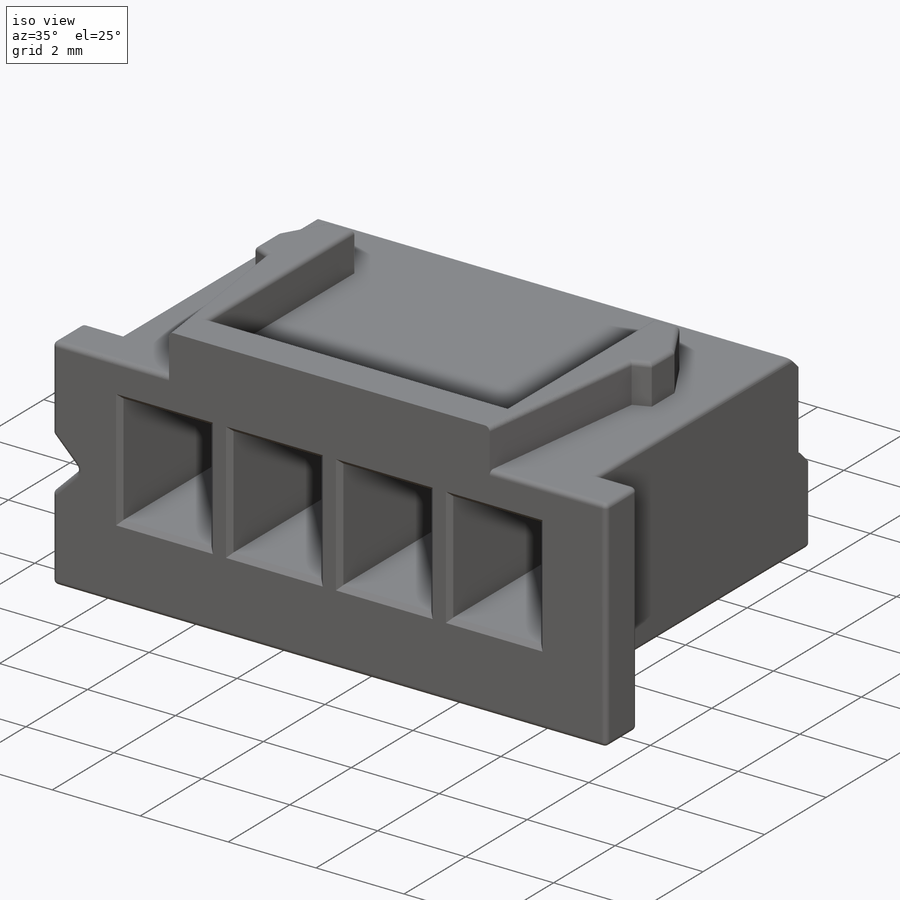
[diagram: iso view]
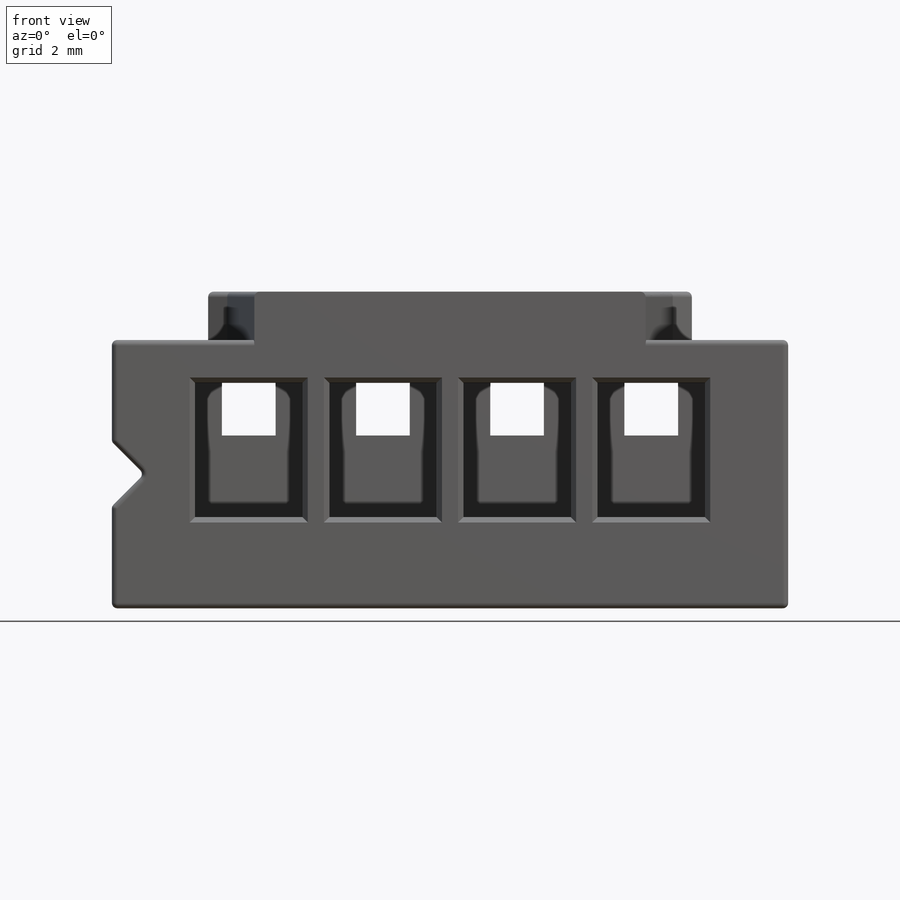
[diagram: front view]
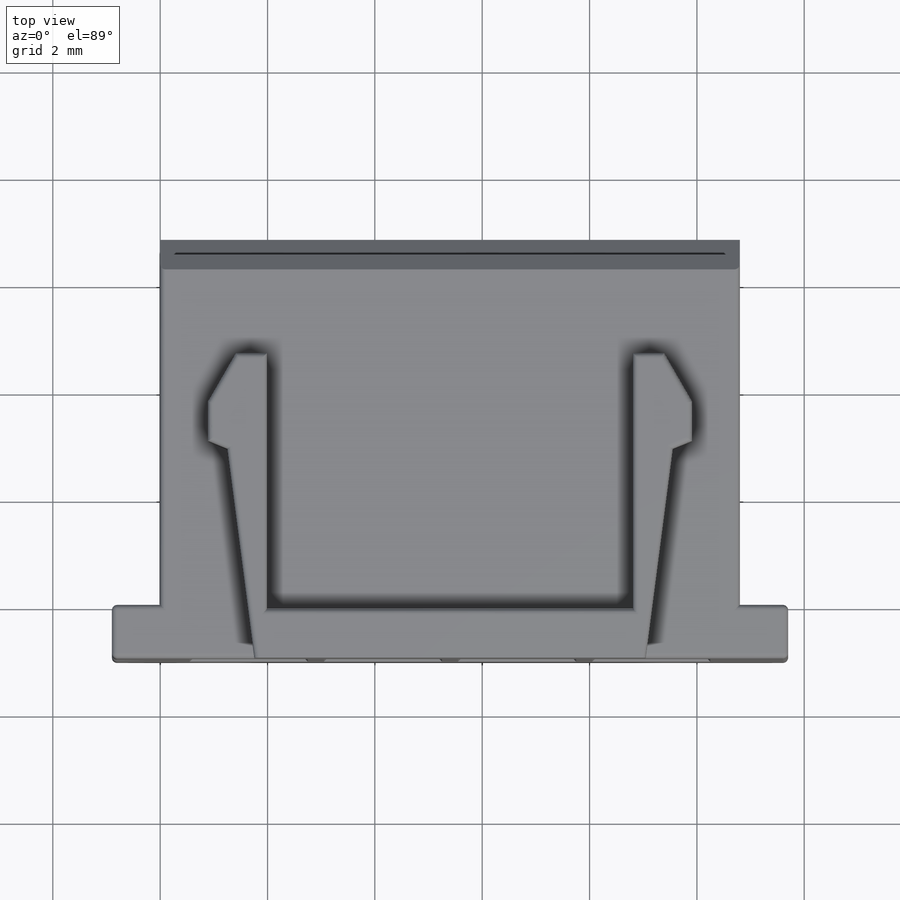
[diagram: top view]
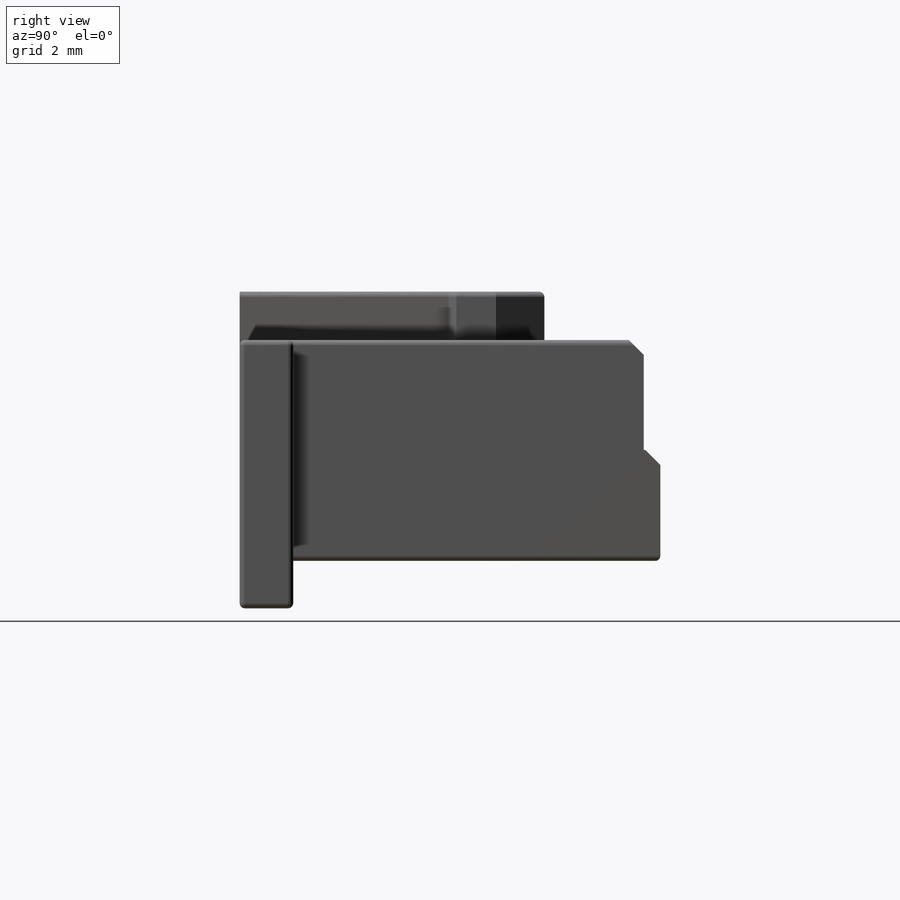
[diagram: right view]
SOLIDWORKS PART (.sldprt)
format: sldprt  version: not decoded by parser v0  size: 498,176 bytes
history: native  units: mm
features: sketch x6, extrude x3, cut_extrude x3, material x1, fillet x1, chamfer x1 (+12 scaffold rows collapsed)
feature tree (27):
  scaffold x12  (default folders/planes/origin — collapsed)
  material  "Material <not specified>"
  sketch  "Sketch2"
  extrude  "Boss-Extrude1"  Depth=10.8mm
  sketch  "Sketch3"  dims[c1.D1=12.3mm c1.D2=6.3mm c1.D3=6.3mm c2.D1=4.9mm c2.D4=5.0mm c2.D5=0.6mm c2.D6=0.6mm c2.D7=0.6mm c2.D8=0.6mm c2.D9=0.6mm c3.D1=0.31mm]
  extrude  "Boss-Extrude2"  Depth=1mm
  sketch  "Sketch4"
  extrude  "Boss-Extrude3"  Depth=0.9mm
  sketch  "Sketch5"  dims[D1=2.0mm D2=2.5mm D3=1.55mm D4=0.8mm D6=2.5mm D5=4.0]
  cut_extrude  "Cut-Extrude1"  Depth=5.2mm
  sketch  "Sketch6"  dims[c1.D1=0.8mm c1.D2=0.8mm c1.D3=1.2mm c1.D4=~0.533841mm c1.D5=~0.133841mm c2.D4=1.2mm c2.D3=0.2mm c3.D4=1.25mm c3.D5=1.2mm c3.D7=1.3mm c3.D6=4.0]
  cut_extrude  "Cut-Extrude2"  Depth=3.75mm
  sketch  "Sketch7"  dims[c1.D1=1.0mm c1.D2=1.0mm c1.D3=0.5mm c1.D4=1.15mm c1.D6=1.0mm c2.D1=1.0mm c2.D2=1.0mm c2.D5=4.0]
  cut_extrude  "Cut-Extrude3"  Depth=2.5mm
  fillet  "Fillet1"  Radius=0.1mm
  chamfer  "Chamfer1"  Distance=0.1mm Angle=45deg
decode coverage: 12 of 14 modeling features carry decoded parameters
note: ~ marks probable driven/reference dimensions
note: suppression state not decoded; provenance and decode notes live in map.json
